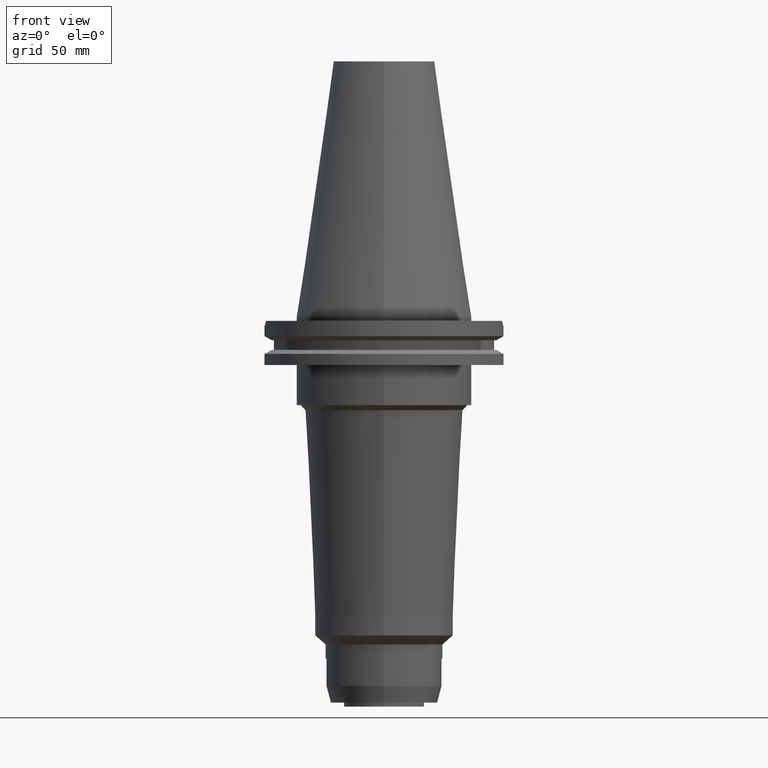
[diagram: clean part render]
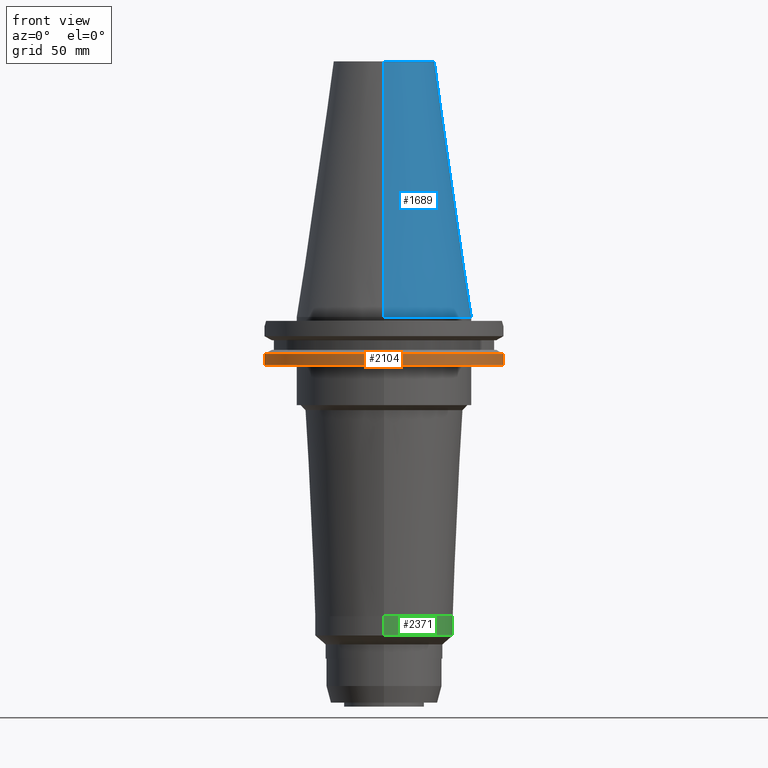
[diagram: same view with three faces highlighted in distinct colors, each labeled with its STEP entity id]
A machine part, front view with three faces highlighted in distinct colors.
Their STEP definitions:

[orange] entity #2104 — the highlighted cylindrical surface (partial cylindrical patch) has radius 49.2125 mm, axis along (0, 0, -1).
#235=CARTESIAN_POINT('',(0.E0,2.625887666732E-14,-1.905E1));
#236=DIRECTION('',(0.E0,0.E0,1.E0));
#237=DIRECTION('',(-9.647287063661E-1,-2.632461264923E-1,0.E0));
#238=AXIS2_PLACEMENT_3D('',#235,#236,#237);
#243=CARTESIAN_POINT('',(0.E0,2.625887666732E-14,-1.905E1));
#244=DIRECTION('',(0.E0,0.E0,1.E0));
#245=DIRECTION('',(0.E0,-1.E0,0.E0));
#246=AXIS2_PLACEMENT_3D('',#243,#244,#245);
#626=DIRECTION('',(-1.228324721565E-13,4.808244798230E-14,-1.E0));
#627=VECTOR('',#626,4.396333230921E0);
#628=CARTESIAN_POINT('',(4.747671146204E1,-1.2955E1,-1.465366676908E1));
#629=LINE('',#628,#627);
#633=DIRECTION('',(-1.341459893288E-13,-4.727433961285E-14,1.E0));
#634=VECTOR('',#633,4.396333230921E0);
#635=CARTESIAN_POINT('',(-4.747671146204E1,-1.2955E1,-1.905E1));
#636=LINE('',#635,#634);
#792=CARTESIAN_POINT('',(0.E0,1.055026073065E-14,-1.465366676908E1));
#793=DIRECTION('',(0.E0,0.E0,-1.E0));
#794=DIRECTION('',(9.647287063661E-1,-2.632461264923E-1,0.E0));
#795=AXIS2_PLACEMENT_3D('',#792,#793,#794);
#800=CARTESIAN_POINT('',(0.E0,1.055026073065E-14,-1.465366676908E1));
#801=DIRECTION('',(0.E0,0.E0,-1.E0));
#802=DIRECTION('',(0.E0,-1.E0,0.E0));
#803=AXIS2_PLACEMENT_3D('',#800,#801,#802);
#1524=CARTESIAN_POINT('',(-4.747671146204E1,-1.2955E1,-1.905E1));
#1525=VERTEX_POINT('',#1524);
#1526=CARTESIAN_POINT('',(0.E0,-4.92125E1,-1.905E1));
#1527=CARTESIAN_POINT('',(4.747671146204E1,-1.2955E1,-1.905E1));
#1528=VERTEX_POINT('',#1526);
#1529=VERTEX_POINT('',#1527);
#1538=CARTESIAN_POINT('',(4.747671146204E1,-1.2955E1,-1.465366676908E1));
#1539=VERTEX_POINT('',#1538);
#1550=CARTESIAN_POINT('',(-4.747671146204E1,-1.2955E1,-1.465366676908E1));
#1551=VERTEX_POINT('',#1550);
#1552=CARTESIAN_POINT('',(0.E0,-4.92125E1,-1.465366676908E1));
#1553=VERTEX_POINT('',#1552);
#2088=CARTESIAN_POINT('',(0.E0,2.625887666732E-14,1.1442E2));
#2089=DIRECTION('',(0.E0,0.E0,-1.E0));
#2090=DIRECTION('',(0.E0,-1.E0,0.E0));
#2091=AXIS2_PLACEMENT_3D('',#2088,#2089,#2090);
#2092=CYLINDRICAL_SURFACE('',#2091,4.92125E1);
#2093=ORIENTED_EDGE('',*,*,#2070,.T.);
#2094=ORIENTED_EDGE('',*,*,#1789,.F.);
#2095=ORIENTED_EDGE('',*,*,#1787,.F.);
#2097=ORIENTED_EDGE('',*,*,#2096,.T.);
#2099=ORIENTED_EDGE('',*,*,#2098,.F.);
#2101=ORIENTED_EDGE('',*,*,#2100,.F.);
#2102=EDGE_LOOP('',(#2093,#2094,#2095,#2097,#2099,#2101));
#2103=FACE_OUTER_BOUND('',#2102,.F.);
#239=CIRCLE('',#238,4.92125E1);
#247=CIRCLE('',#246,4.92125E1);
#796=CIRCLE('',#795,4.92125E1);
#804=CIRCLE('',#803,4.92125E1);
#1787=EDGE_CURVE('',#1525,#1528,#239,.T.);
#1789=EDGE_CURVE('',#1528,#1529,#247,.T.);
#2070=EDGE_CURVE('',#1539,#1529,#629,.T.);
#2096=EDGE_CURVE('',#1525,#1551,#636,.T.);
#2098=EDGE_CURVE('',#1553,#1551,#804,.T.);
#2100=EDGE_CURVE('',#1539,#1553,#796,.T.);
#2104=ADVANCED_FACE('',(#2103),#2092,.T.);

[blue] entity #1689 — the highlighted conical surface has half-angle 8.297 deg.
#26=CARTESIAN_POINT('',(0.E0,1.846767373114E-14,1.016E2));
#27=DIRECTION('',(0.E0,0.E0,-1.E0));
#28=DIRECTION('',(0.E0,1.E0,0.E0));
#29=AXIS2_PLACEMENT_3D('',#26,#27,#28);
#50=DIRECTION('',(0.E0,-1.443069799457E-1,-9.895329683942E-1));
#51=VECTOR('',#50,1.026746993229E2);
#52=CARTESIAN_POINT('',(0.E0,-2.010832422387E1,1.016E2));
#53=LINE('',#52,#51);
#65=DIRECTION('',(0.E0,1.443069799457E-1,-9.895329683942E-1));
#66=VECTOR('',#65,1.026746993229E2);
#67=CARTESIAN_POINT('',(0.E0,2.010832422387E1,1.016E2));
#68=LINE('',#67,#66);
#72=CARTESIAN_POINT('',(0.E0,1.846767373114E-14,8.242295734817E-13));
#73=DIRECTION('',(0.E0,0.E0,-1.E0));
#74=DIRECTION('',(0.E0,1.E0,0.E0));
#75=AXIS2_PLACEMENT_3D('',#72,#73,#74);
#1410=CARTESIAN_POINT('',(0.E0,-2.010832422388E1,1.016E2));
#1411=CARTESIAN_POINT('',(0.E0,2.010832422388E1,1.016E2));
#1412=VERTEX_POINT('',#1410);
#1413=VERTEX_POINT('',#1411);
#1636=CARTESIAN_POINT('',(0.E0,3.4925E1,5.115907697473E-13));
#1637=VERTEX_POINT('',#1636);
#1638=CARTESIAN_POINT('',(0.E0,-3.4925E1,5.115907697473E-13));
#1639=VERTEX_POINT('',#1638);
#1677=CARTESIAN_POINT('',(0.E0,1.846767373114E-14,5.08E1));
#1678=DIRECTION('',(0.E0,0.E0,-1.E0));
#1679=DIRECTION('',(0.E0,-1.E0,0.E0));
#1680=AXIS2_PLACEMENT_3D('',#1677,#1678,#1679);
#1681=CONICAL_SURFACE('',#1680,2.751666211194E1,8.29715E0);
#1682=ORIENTED_EDGE('',*,*,#1667,.T.);
#1684=ORIENTED_EDGE('',*,*,#1683,.T.);
#1685=ORIENTED_EDGE('',*,*,#1670,.F.);
#1686=ORIENTED_EDGE('',*,*,#1651,.F.);
#1687=EDGE_LOOP('',(#1682,#1684,#1685,#1686));
#1688=FACE_OUTER_BOUND('',#1687,.F.);
#30=CIRCLE('',#29,2.010832422388E1);
#76=CIRCLE('',#75,3.4925E1);
#1651=EDGE_CURVE('',#1413,#1412,#30,.T.);
#1667=EDGE_CURVE('',#1413,#1637,#68,.T.);
#1670=EDGE_CURVE('',#1412,#1639,#53,.T.);
#1683=EDGE_CURVE('',#1637,#1639,#76,.T.);
#1689=ADVANCED_FACE('',(#1688),#1681,.T.);

[green] entity #2371 — the highlighted cylindrical surface (partial cylindrical patch) has radius 27.5 mm, axis along (0, 0, -1).
#923=CARTESIAN_POINT('',(0.E0,0.E0,-1.188E2));
#924=DIRECTION('',(0.E0,0.E0,-1.E0));
#925=DIRECTION('',(0.E0,1.E0,0.E0));
#926=AXIS2_PLACEMENT_3D('',#923,#924,#925);
#954=DIRECTION('',(0.E0,1.206538476633E-12,-1.E0));
#955=VECTOR('',#954,7.699999999991E0);
#956=CARTESIAN_POINT('',(0.E0,-2.75E1,-1.188E2));
#957=LINE('',#956,#955);
#961=DIRECTION('',(0.E0,-1.206538476633E-12,-1.E0));
#962=VECTOR('',#961,7.699999999991E0);
#963=CARTESIAN_POINT('',(0.E0,2.75E1,-1.188E2));
#964=LINE('',#963,#962);
#983=CARTESIAN_POINT('',(0.E0,0.E0,-1.265E2));
#984=DIRECTION('',(0.E0,0.E0,1.E0));
#985=DIRECTION('',(0.E0,-1.E0,0.E0));
#986=AXIS2_PLACEMENT_3D('',#983,#984,#985);
#1486=CARTESIAN_POINT('',(0.E0,2.749999999999E1,-1.265E2));
#1487=VERTEX_POINT('',#1486);
#1488=CARTESIAN_POINT('',(0.E0,-2.749999999998E1,-1.265E2));
#1489=VERTEX_POINT('',#1488);
#1490=CARTESIAN_POINT('',(0.E0,2.75E1,-1.188E2));
#1491=VERTEX_POINT('',#1490);
#1492=CARTESIAN_POINT('',(0.E0,-2.75E1,-1.188E2));
#1493=VERTEX_POINT('',#1492);
#2359=CARTESIAN_POINT('',(0.E0,2.625887666732E-14,1.1442E2));
#2360=DIRECTION('',(0.E0,0.E0,-1.E0));
#2361=DIRECTION('',(0.E0,-1.E0,0.E0));
#2362=AXIS2_PLACEMENT_3D('',#2359,#2360,#2361);
#2363=CYLINDRICAL_SURFACE('',#2362,2.75E1);
#2364=ORIENTED_EDGE('',*,*,#2349,.T.);
#2366=ORIENTED_EDGE('',*,*,#2365,.F.);
#2367=ORIENTED_EDGE('',*,*,#2352,.F.);
#2368=ORIENTED_EDGE('',*,*,#2323,.F.);
#2369=EDGE_LOOP('',(#2364,#2366,#2367,#2368));
#2370=FACE_OUTER_BOUND('',#2369,.F.);
#927=CIRCLE('',#926,2.75E1);
#987=CIRCLE('',#986,2.749999999998E1);
#2323=EDGE_CURVE('',#1491,#1493,#927,.T.);
#2349=EDGE_CURVE('',#1491,#1487,#964,.T.);
#2352=EDGE_CURVE('',#1493,#1489,#957,.T.);
#2365=EDGE_CURVE('',#1489,#1487,#987,.T.);
#2371=ADVANCED_FACE('',(#2370),#2363,.T.);